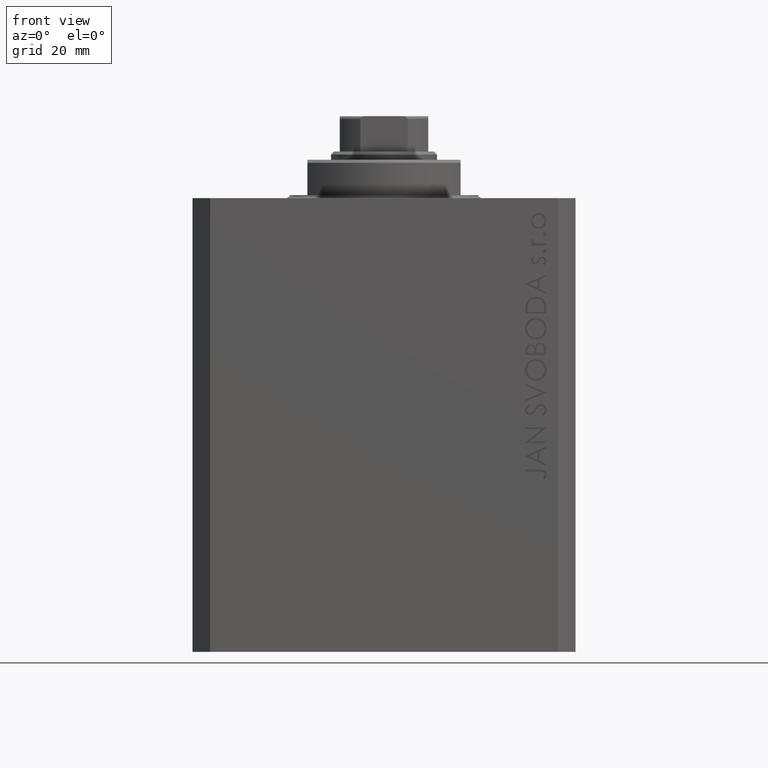
[diagram: clean part render]
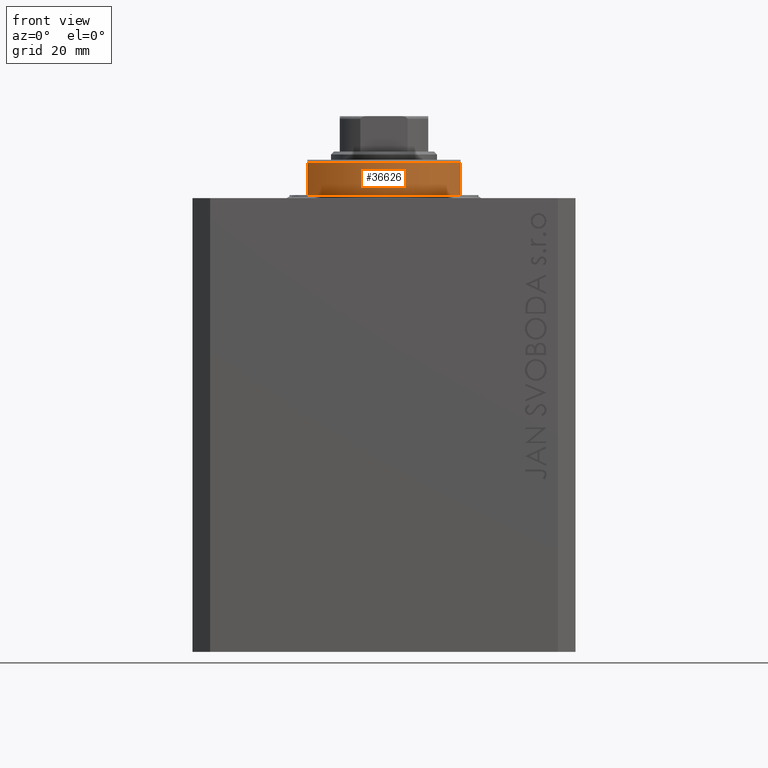
[diagram: same view with one face highlighted and labeled with its STEP entity id]
A machine part, front view. The second image highlights one B-rep face of the part: STEP entity #36626.
In plain terms, the highlighted cylindrical surface (partial cylindrical patch) has radius 16 mm, axis along (0, 0, -1).
Its self-contained STEP definition (entity closure, byte-faithful):
#3993 = ORIENTED_EDGE ( 'NONE', *, *, #22603, .T. ) ;
#4849 = DIRECTION ( 'NONE',  ( 0.000000000000000000, 0.000000000000000000, 1.000000000000000000 ) ) ;
#8428 = DIRECTION ( 'NONE',  ( -1.000000000000000000, 0.000000000000000000, 0.000000000000000000 ) ) ;
#9971 = EDGE_CURVE ( 'NONE', #30899, #30662, #12477, .T. ) ;
#11205 = VERTEX_POINT ( 'NONE', #47203 ) ;
#12477 = CIRCLE ( 'NONE', #20910, 16.00000000000000000 ) ;
#12938 = EDGE_CURVE ( 'NONE', #30899, #30845, #13972, .T. ) ;
#13574 = CIRCLE ( 'NONE', #27305, 16.00000000000000000 ) ;
#13972 = LINE ( 'NONE', #24255, #24817 ) ;
#14576 = CARTESIAN_POINT ( 'NONE',  ( -13.00000000000000000, -9.327379053088813876, -6.500000000000000000 ) ) ;
#14678 = ORIENTED_EDGE ( 'NONE', *, *, #25923, .T. ) ;
#14853 = CARTESIAN_POINT ( 'NONE',  ( -13.00000000000000000, -9.327379053088815652, -0.4999999999999995559 ) ) ;
#15118 = AXIS2_PLACEMENT_3D ( 'NONE', #15723, #37682, #38153 ) ;
#15723 = CARTESIAN_POINT ( 'NONE',  ( 0.000000000000000000, 0.000000000000000000, -6.500000000000000000 ) ) ;
#16196 = FACE_OUTER_BOUND ( 'NONE', #46269, .T. ) ;
#16907 = ORIENTED_EDGE ( 'NONE', *, *, #9971, .T. ) ;
#17249 = DIRECTION ( 'NONE',  ( -0.000000000000000000, -0.000000000000000000, -1.000000000000000000 ) ) ;
#17544 = DIRECTION ( 'NONE',  ( 0.000000000000000000, 0.000000000000000000, -1.000000000000000000 ) ) ;
#18392 = LINE ( 'NONE', #14576, #43418 ) ;
#19867 = ORIENTED_EDGE ( 'NONE', *, *, #12938, .F. ) ;
#20910 = AXIS2_PLACEMENT_3D ( 'NONE', #24192, #17249, #31562 ) ;
#22603 = EDGE_CURVE ( 'NONE', #11205, #30845, #13574, .T. ) ;
#23152 = CYLINDRICAL_SURFACE ( 'NONE', #15118, 16.00000000000000000 ) ;
#24192 = CARTESIAN_POINT ( 'NONE',  ( 0.000000000000000000, 0.000000000000000000, -0.4999999999999995559 ) ) ;
#24255 = CARTESIAN_POINT ( 'NONE',  ( 13.00000000000000000, -9.327379053088813876, -6.500000000000000000 ) ) ;
#24817 = VECTOR ( 'NONE', #17544, 1000.000000000000000 ) ;
#25923 = EDGE_CURVE ( 'NONE', #30662, #11205, #18392, .T. ) ;
#27305 = AXIS2_PLACEMENT_3D ( 'NONE', #27515, #4849, #8428 ) ;
#27515 = CARTESIAN_POINT ( 'NONE',  ( 0.000000000000000000, 0.000000000000000000, -6.000000000000030198 ) ) ;
#30662 = VERTEX_POINT ( 'NONE', #14853 ) ;
#30845 = VERTEX_POINT ( 'NONE', #36116 ) ;
#30899 = VERTEX_POINT ( 'NONE', #33950 ) ;
#31562 = DIRECTION ( 'NONE',  ( 1.000000000000000000, 0.000000000000000000, 0.000000000000000000 ) ) ;
#33950 = CARTESIAN_POINT ( 'NONE',  ( 13.00000000000000000, -9.327379053088815652, -0.4999999999999995559 ) ) ;
#36116 = CARTESIAN_POINT ( 'NONE',  ( 13.00000000000000000, -9.327379053088815652, -6.000000000000030198 ) ) ;
#36626 = ADVANCED_FACE ( 'NONE', ( #16196 ), #23152, .T. ) ;
#37682 = DIRECTION ( 'NONE',  ( -0.000000000000000000, -0.000000000000000000, 1.000000000000000000 ) ) ;
#38153 = DIRECTION ( 'NONE',  ( 1.000000000000000000, 0.000000000000000000, 0.000000000000000000 ) ) ;
#43418 = VECTOR ( 'NONE', #46417, 1000.000000000000000 ) ;
#46269 = EDGE_LOOP ( 'NONE', ( #19867, #16907, #14678, #3993 ) ) ;
#46417 = DIRECTION ( 'NONE',  ( 0.000000000000000000, 0.000000000000000000, -1.000000000000000000 ) ) ;
#47203 = CARTESIAN_POINT ( 'NONE',  ( -13.00000000000000000, -9.327379053088815652, -6.000000000000030198 ) ) ;